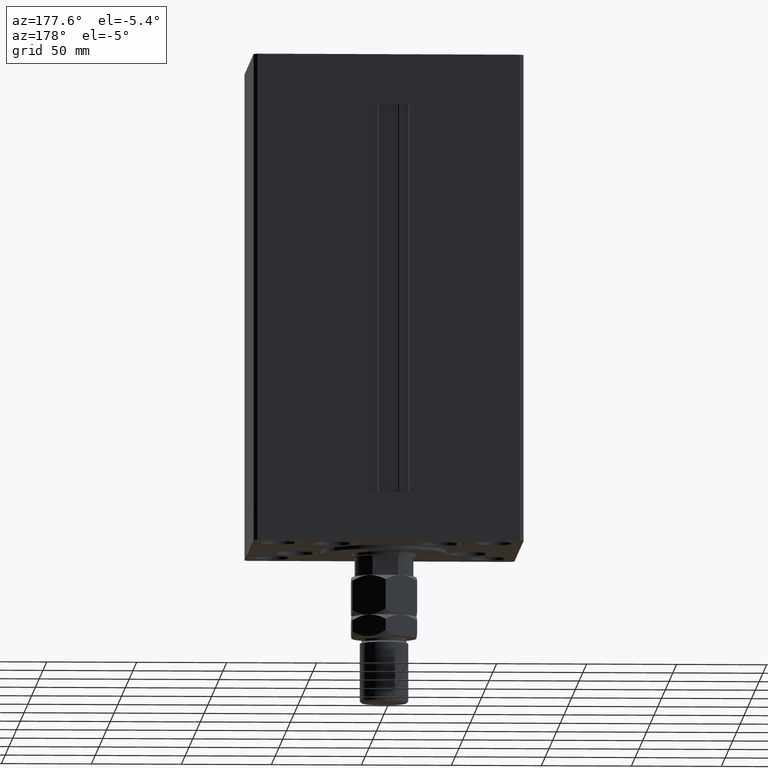
[diagram: clean part render]
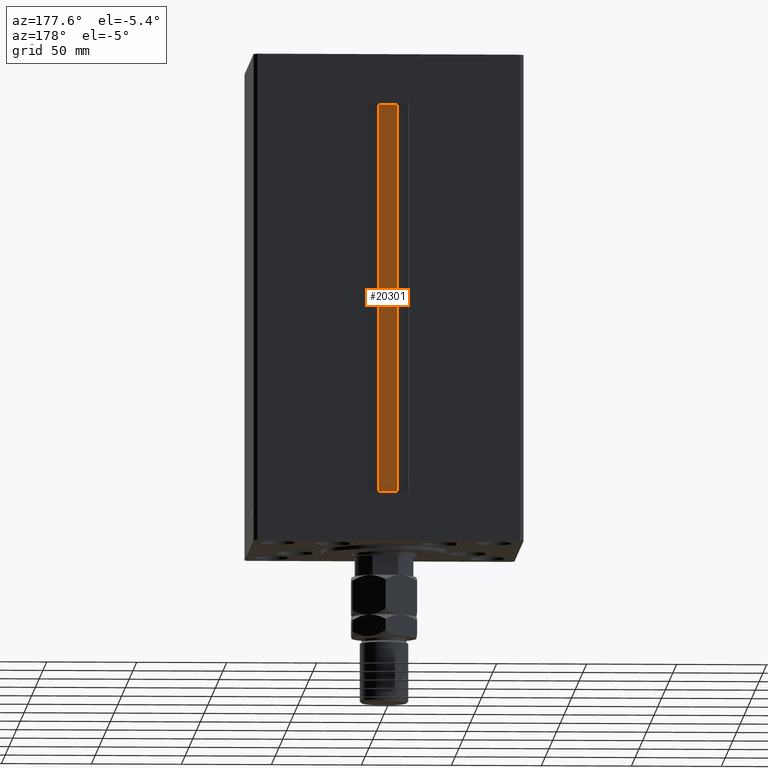
[diagram: same view with one face highlighted and labeled with its STEP entity id]
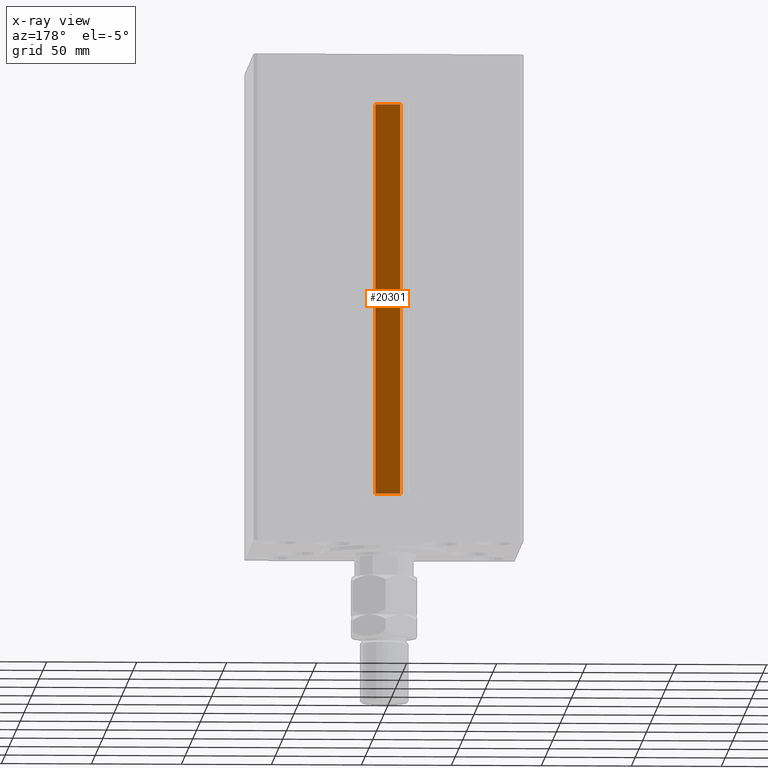
[diagram: x-ray of the same camera — body ghosted, the highlighted face saturated]
A machine part, auxiliary view. The second image highlights one B-rep face of the part: STEP entity #20301.
The next image is the same camera in x-ray: the body ghosted, the highlighted face saturated — about 0% of this face is hidden behind the body in this view.
In plain terms, the highlighted planar face has unit normal (0, -1, 0).
Its self-contained STEP definition (entity closure, byte-faithful):
#2392 = CARTESIAN_POINT ( 'NONE',  ( 6.876153656360466826, 51.99999999999986500, 0.000000000000000000 ) ) ;
#3885 = ORIENTED_EDGE ( 'NONE', *, *, #36452, .T. ) ;
#4015 = DIRECTION ( 'NONE',  ( -1.000000000000000000, 0.000000000000000000, 0.000000000000000000 ) ) ;
#4905 = VECTOR ( 'NONE', #5983, 1000.000000000000000 ) ;
#4977 = VECTOR ( 'NONE', #49524, 1000.000000000000000 ) ;
#5332 = CARTESIAN_POINT ( 'NONE',  ( 6.876153656360466826, 51.99999999999986500, 0.000000000000000000 ) ) ;
#5404 = VERTEX_POINT ( 'NONE', #16317 ) ;
#5983 = DIRECTION ( 'NONE',  ( -0.000000000000000000, -0.000000000000000000, 1.000000000000000000 ) ) ;
#6230 = LINE ( 'NONE', #2392, #4905 ) ;
#6278 = VERTEX_POINT ( 'NONE', #11970 ) ;
#9380 = ORIENTED_EDGE ( 'NONE', *, *, #39532, .F. ) ;
#11970 = CARTESIAN_POINT ( 'NONE',  ( -6.876153656360466826, 51.99999999999986500, 217.0000000000000000 ) ) ;
#12734 = CARTESIAN_POINT ( 'NONE',  ( 6.876153656360466826, 51.99999999999986500, 0.000000000000000000 ) ) ;
#16317 = CARTESIAN_POINT ( 'NONE',  ( 6.876153656360466826, 51.99999999999986500, 217.0000000000000000 ) ) ;
#16618 = LINE ( 'NONE', #5332, #45097 ) ;
#20301 = ADVANCED_FACE ( 'NONE', ( #31426 ), #20417, .F. ) ;
#20417 = PLANE ( 'NONE',  #27062 ) ;
#20715 = DIRECTION ( 'NONE',  ( 1.000000000000000000, -0.000000000000000000, -0.000000000000000000 ) ) ;
#20845 = VERTEX_POINT ( 'NONE', #22374 ) ;
#22374 = CARTESIAN_POINT ( 'NONE',  ( 6.876153656360466826, 51.99999999999986500, 0.000000000000000000 ) ) ;
#23284 = CARTESIAN_POINT ( 'NONE',  ( -6.876153656360466826, 51.99999999999986500, 0.000000000000000000 ) ) ;
#26761 = CARTESIAN_POINT ( 'NONE',  ( -6.876153656360466826, 51.99999999999986500, 0.000000000000000000 ) ) ;
#27036 = EDGE_LOOP ( 'NONE', ( #50379, #9380, #3885, #42340 ) ) ;
#27062 = AXIS2_PLACEMENT_3D ( 'NONE', #12734, #40115, #47022 ) ;
#28998 = VECTOR ( 'NONE', #4015, 1000.000000000000000 ) ;
#31426 = FACE_OUTER_BOUND ( 'NONE', #27036, .T. ) ;
#34222 = EDGE_CURVE ( 'NONE', #20845, #5404, #6230, .T. ) ;
#36452 = EDGE_CURVE ( 'NONE', #42659, #6278, #49025, .T. ) ;
#39090 = CARTESIAN_POINT ( 'NONE',  ( 0.000000000000000000, 51.99999999999986500, 217.0000000000000000 ) ) ;
#39532 = EDGE_CURVE ( 'NONE', #42659, #20845, #16618, .T. ) ;
#40115 = DIRECTION ( 'NONE',  ( 0.000000000000000000, -1.000000000000000000, -0.000000000000000000 ) ) ;
#42340 = ORIENTED_EDGE ( 'NONE', *, *, #48364, .F. ) ;
#42659 = VERTEX_POINT ( 'NONE', #23284 ) ;
#43152 = LINE ( 'NONE', #39090, #28998 ) ;
#45097 = VECTOR ( 'NONE', #20715, 1000.000000000000000 ) ;
#47022 = DIRECTION ( 'NONE',  ( 0.000000000000000000, 0.000000000000000000, -1.000000000000000000 ) ) ;
#48364 = EDGE_CURVE ( 'NONE', #5404, #6278, #43152, .T. ) ;
#49025 = LINE ( 'NONE', #26761, #4977 ) ;
#49524 = DIRECTION ( 'NONE',  ( -0.000000000000000000, -0.000000000000000000, 1.000000000000000000 ) ) ;
#50379 = ORIENTED_EDGE ( 'NONE', *, *, #34222, .F. ) ;